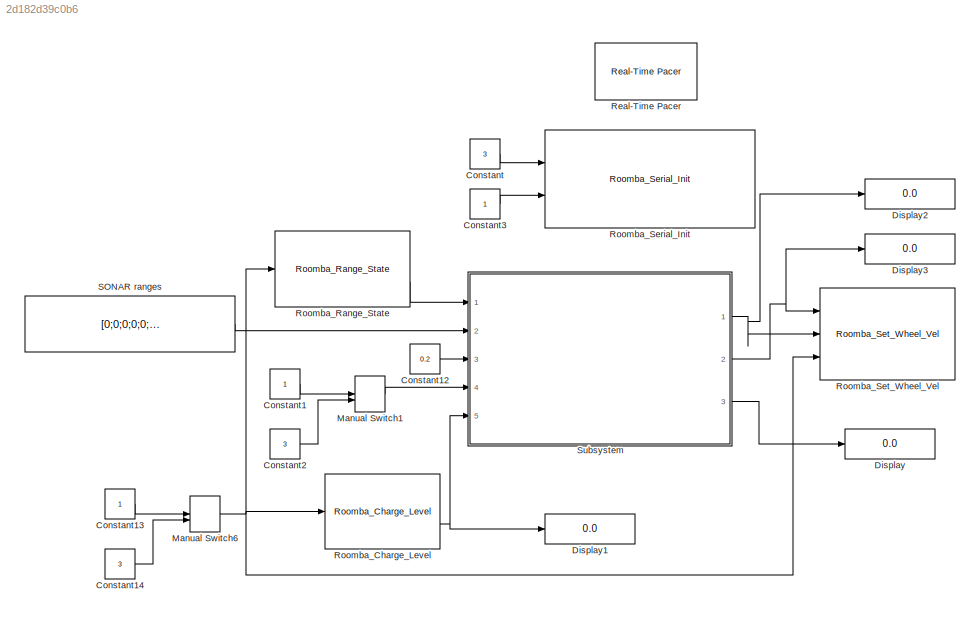
MODEL slx_2d182d39c0b6
KIND model
CONFIG AbsTol = auto
CONFIG EnableMultiTasking = off
CONFIG FixedStep = auto
CONFIG MaxStep = auto
CONFIG MinStep = auto
CONFIG RelTol = 1e-3
CONFIG SampleTimeConstraint = Unconstrained
CONFIG Solver = VariableStepAuto
CONFIG SolverName = VariableStepAuto
CONFIG StartTime = 0.0
CONFIG StopTime = Inf
BLOCK [Constant] Constant
  Value = 3
BLOCK [Constant] Constant1
BLOCK [Constant] Constant12
  Value = 0.2
BLOCK [Constant] Constant13
BLOCK [Constant] Constant14
  Value = 3
BLOCK [Constant] Constant2
  Value = 3
BLOCK [Constant] Constant3
BLOCK [Display] Display
  Decimation = 1
  Ports = [1]
BLOCK [Display] Display1
  Decimation = 1
  Ports = [1]
BLOCK [Display] Display2
  Decimation = 1
  Ports = [1]
BLOCK [Display] Display3
  Decimation = 1
  Ports = [1]
BLOCK [ManualSwitch] Manual Switch1
  CurrentSetting = 0
BLOCK [ManualSwitch] Manual Switch6
  CurrentSetting = 0
BLOCK [Reference] Real-Time Pacer  REF=realtime_pacer_lib/Real-Time Pacer
  Ports = []
  SourceBlock = realtime_pacer_lib/Real-Time Pacer
  SourceType = RealTime_Pacer
BLOCK [Reference] Roomba_Charge_Level  REF=martin_sean_RoombaLib/Roomba_Charge_Level
  Description = Returns the battery charge level on the Roomba as a percentage. Updates every 100 seconds.
  Ports = [1, 2]
  SourceBlock = martin_sean_RoombaLib/Roomba_Charge_Level
  SourceType = Charge Level Roomba
BLOCK [Reference] Roomba_Range_State  REF=martin_sean_RoombaLib/Roomba_Range_State
  Description = Returns [1x6] array containing the state of the six IR sensors on the front of the Roomba. A \n'1' indicates there is an object ahead and a '0' indicates no object.
  Ports = [1, 2]
  SourceBlock = martin_sean_RoombaLib/Roomba_Range_State
  SourceType = Range State Roomba
BLOCK [Reference] Roomba_Serial_Init  REF=martin_sean_RoombaLib/Roomba_Serial_Init
  Description = Initializes a serial connection to the Roomba. Takes the COM Port number and mode as inputs.\nFor instance, COM Port = 3 and Mode = 1 will set up a connection to the Roomba on COM3\nand place it in 'full' mode.\n\nA 0 is returned after successful initialization.
  Ports = [2, 1]
  Priority = -1000
  SourceBlock = martin_sean_RoombaLib/Roomba_Serial_Init
  SourceType = Roomba Serial Port Initialization
BLOCK [Reference] Roomba_Set_Wheel_Vel  REF=martin_sean_RoombaLib/Roomba_Set_Wheel_Vel
  Description = Sets the right and left wheel velocities on the Roomba. The values are in meters/sec between \n[-0.5, 0.5]. Negative velocity is backwards.
  Ports = [3, 1]
  SourceBlock = martin_sean_RoombaLib/Roomba_Set_Wheel_Vel
  SourceType = Set Wheel Velocity Roomba
BLOCK [Constant] SONAR ranges
  Value = [0;0;0;0;0;0]
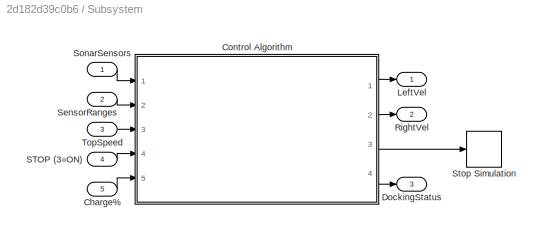
BLOCK [SubSystem] Subsystem
  Ports = [5, 3]
  RequestExecContextInheritance = off
  Variant = off
BLOCK [Inport] Subsystem/Charge%
  IconDisplay = Port number
  Port = 5
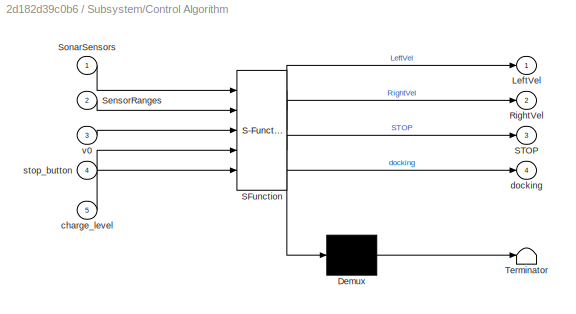
BLOCK [SubSystem] Subsystem/Control Algorithm
  ErrorFcn = Stateflow.Translate.translate
  PermitHierarchicalResolution = ExplicitOnly
  Ports = [5, 4]
  RequestExecContextInheritance = off
  SFBlockType = Chart
  TreatAsAtomicUnit = on
  Variant = off
BLOCK [Demux] Subsystem/Control Algorithm/ Demux 
  Outputs = 1
  Ports = [1, 1]
BLOCK [S-Function] Subsystem/Control Algorithm/ SFunction 
  EnableBusSupport = on
  FunctionName = sf_sfun
  PortCounts = [5 5]
  Ports = [5, 5]
  SFcnIsStateOwnerBlock = off
  SFunctionDeploymentMode = off
  Tag = Stateflow S-Function project2_roomba_serialtest 1
BLOCK [Terminator] Subsystem/Control Algorithm/ Terminator 
BLOCK [Outport] Subsystem/Control Algorithm/LeftVel
  IconDisplay = Port number
BLOCK [Outport] Subsystem/Control Algorithm/RightVel
  IconDisplay = Port number
  Port = 2
BLOCK [Outport] Subsystem/Control Algorithm/STOP
  IconDisplay = Port number
  Port = 3
BLOCK [Inport] Subsystem/Control Algorithm/SensorRanges
  IconDisplay = Port number
  Port = 2
BLOCK [Inport] Subsystem/Control Algorithm/SonarSensors
  IconDisplay = Port number
BLOCK [Inport] Subsystem/Control Algorithm/charge_level
  IconDisplay = Port number
  Port = 5
BLOCK [Outport] Subsystem/Control Algorithm/docking
  IconDisplay = Port number
  Port = 4
BLOCK [Inport] Subsystem/Control Algorithm/stop_button
  IconDisplay = Port number
  Port = 4
BLOCK [Inport] Subsystem/Control Algorithm/v0
  IconDisplay = Port number
  Port = 3
BLOCK [Outport] Subsystem/DockingStatus
  IconDisplay = Port number
  Port = 3
BLOCK [Outport] Subsystem/LeftVel
  IconDisplay = Port number
BLOCK [Outport] Subsystem/RightVel
  IconDisplay = Port number
  Port = 2
BLOCK [Inport] Subsystem/STOP (3=ON)
  IconDisplay = Port number
  Port = 4
BLOCK [Inport] Subsystem/SensorRanges
  IconDisplay = Port number
  Port = 2
BLOCK [Inport] Subsystem/SonarSensors
  IconDisplay = Port number
BLOCK [Stop] Subsystem/Stop Simulation
BLOCK [Inport] Subsystem/TopSpeed
  IconDisplay = Port number
  Port = 3
LINE Constant12:1 -> Subsystem:3
LINE Constant13:1 -> Manual Switch6:1
LINE Constant14:1 -> Manual Switch6:2
LINE Constant1:1 -> Manual Switch1:1
LINE Constant2:1 -> Manual Switch1:2
LINE Constant3:1 -> Roomba_Serial_Init:2
LINE Constant:1 -> Roomba_Serial_Init:1
LINE Manual Switch1:1 -> Subsystem:4
NET Manual Switch6:1 -> Roomba_Charge_Level:1, Roomba_Range_State:1, Roomba_Set_Wheel_Vel:3
NET Roomba_Charge_Level:2 -> Display1:1, Subsystem:5
LINE Roomba_Range_State:2 -> Subsystem:1
LINE SONAR ranges:1 -> Subsystem:2
LINE Subsystem/Charge%:1 -> Subsystem/Control Algorithm:5
LINE Subsystem/Control Algorithm:1 -> Subsystem/LeftVel:1
LINE Subsystem/Control Algorithm:2 -> Subsystem/RightVel:1
LINE Subsystem/Control Algorithm:3 -> Subsystem/Stop Simulation:1
LINE Subsystem/Control Algorithm:4 -> Subsystem/DockingStatus:1
LINE Subsystem/STOP (3=ON):1 -> Subsystem/Control Algorithm:4
LINE Subsystem/SensorRanges:1 -> Subsystem/Control Algorithm:2
LINE Subsystem/SonarSensors:1 -> Subsystem/Control Algorithm:1
LINE Subsystem/TopSpeed:1 -> Subsystem/Control Algorithm:3
NET Subsystem:1 -> Display2:1, Roomba_Set_Wheel_Vel:2
NET Subsystem:2 -> Display3:1, Roomba_Set_Wheel_Vel:1
LINE Subsystem:3 -> Display:1
note: NET lines group one-source signal fan-out (src -> all destinations, sorted); 1:1 wires keep LINE
CHART Subsystem/Control Algorithm states=29 transitions=35
  STATE_LABEL 'BatteryLevelLogic'
  STATE_LABEL 'CheckBat\nen:\n  docking = 0;\n'
  STATE_LABEL 'SeekDockRoomba_Get'
  STATE_LABEL "SCRIPT:\nfunction SeekDockRoomba_Get\npersistent obj\ncoder.extrinsic('SeekDockRoomba');\ncoder.extrinsic('evalin');\ncoder.extrinsic('get');\nif isempty(obj)\n    obj = evalin('base','objWs');\nend\nSeekDockRoomba(obj);\n"
  STATE_LABEL 'LowBat\nen:\n  docking = 1;\n  SeekDockRoomba_Get();\n'
  STATE_LABEL '[charge_level <= 10]'
  STATE_LABEL 'CheckBat\nen:\n  docking = 0;\n'
  STATE_LABEL 'SeekDockRoomba_Get'
  STATE_LABEL "SCRIPT:\nfunction SeekDockRoomba_Get\npersistent obj\ncoder.extrinsic('SeekDockRoomba');\ncoder.extrinsic('evalin');\ncoder.extrinsic('get');\nif isempty(obj)\n    obj = evalin('base','objWs');\nend\nSeekDockRoomba(obj);\n"
  STATE_LABEL 'LowBat\nen:\n  docking = 1;\n  SeekDockRoomba_Get();\n'
  STATE_LABEL 'EmergencyStopLogic\n'
  STATE_LABEL 'StopButtonOFF\nen:\n  %do nothing\n  %\n  STOP = 0;\n'
  STATE_LABEL 'StopButtonON\nen:\n  LeftVel = 0;\n  RightVel = 0;\n  %this output must be\n  %wired to Simulink\n  %stop sink block\n  %\n  STOP = 1;\n'
  STATE_LABEL '{STOP=0;}'
  STATE_LABEL 'after(0.1,sec)'
  STATE_LABEL '[stop_button == 3]'
  STATE_LABEL 'StopButtonOFF\nen:\n  %do nothing\n  %\n  STOP = 0;\n'
  STATE_LABEL 'StopButtonON\nen:\n  LeftVel = 0;\n  RightVel = 0;\n  %this output must be\n  %wired to Simulink\n  %stop sink block\n  %\n  STOP = 1;\n'
  STATE_LABEL 'ObstacleAvoidLogic\nen,du:\nfrontSensors = SonarSensors(3:4);\n%frontSensors = SonarSensors(3:4) > SensorRanges(3:4);\n%leftMostSensors = [SonarSensors(1)] > SensorRanges(1);\n%leftMiddleSensors = [SonarSensors(1:2)] > SensorRanges(1:2);\n%rightMiddleSensors = [SonarSensors(5:6)] > SensorRanges(5:6);\n%rightMostSensors = [SonarSensors(6) ]> SensorRanges(6);\nleftMT=[SonarSensors(1)]; %>SensorRanges(1);\nle...<+225ch>'
  STATE_LABEL 'InitialCount\nen:\n  count=0;\n'
  STATE_LABEL 'ReverseABit\nen,du:\nRightVel = -v0;\nLeftVel = -v0;'
  STATE_LABEL 'GoStraight\nen,du:\nRightVel = v0;\nLeftVel = v0;\n'
  STATE_LABEL 'TurnRightWide \ndu:\nRightVel = v0/2;\nLeftVel = v0;'
  STATE_LABEL 'TurnRightTight\ndu :\n RightVel = v0/5;\n LeftVel = v0;'
  STATE_LABEL 'TurnLeftInPlace\ndu :\nRightVel = v0;\nLeftVel = -v0;'
  STATE_LABEL 'TurnRightInPlace\ndu :\nRightVel = -v0;\nLeftVel = v0;'
  STATE_LABEL 'TurnLeftWide\ndu :\n RightVel = v0;\n LeftVel = v0/2;'
  STATE_LABEL 'TurnLeftTight\ndu :\n RightVel = v0;\n LeftVel = v0/5;'
  STATE_LABEL 'ReverseABit1\nen,du:\nRightVel = -v0;\nLeftVel = -v0;'
  STATE_LABEL 'ReverseALot\nen,du:\nRightVel = -v0;\nLeftVel = -v0;'
  STATE_LABEL 'DetermineRightLeft\n\n'
  STATE_LABEL 'DeterminerightWide\n\n'
  STATE_LABEL 'DetermineLeftTight\n\n'
  STATE_LABEL 'Nothing\n\n'
  STATE_LABEL 'DetermineCount\n\n'
  STATE_LABEL 'DeterminerightTight\n\n'
  STATE_LABEL 'DetermineFront\n\n'
  STATE_LABEL 'DetermineLeftWide\n\n'
  STATE_LABEL 'Count\nentry:count=count+1;\n'
  STATE_LABEL 'Stop\nen,du:\nRightVel = 0;\nLeftVel = 0;'
